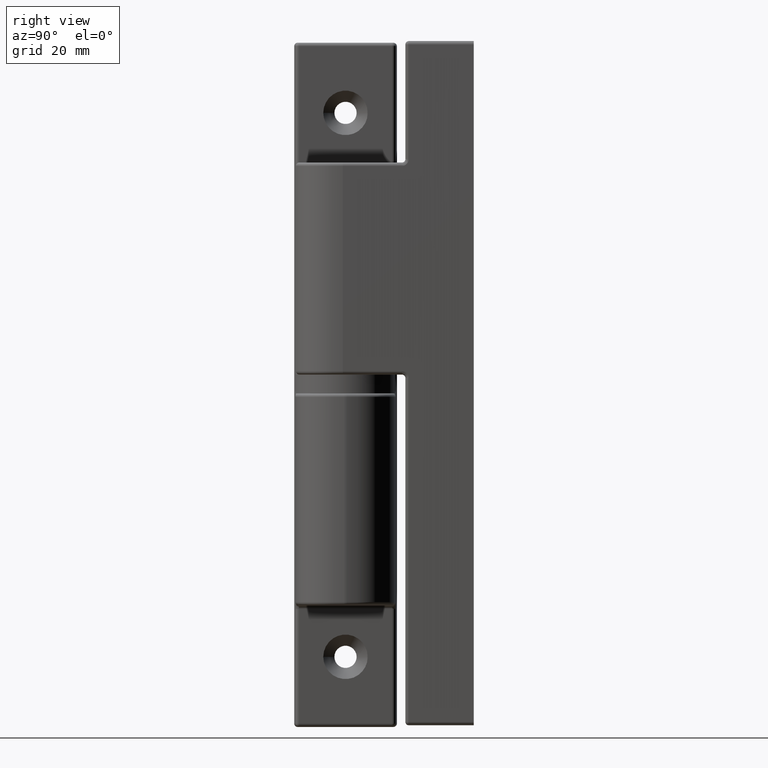
[diagram: clean part render]
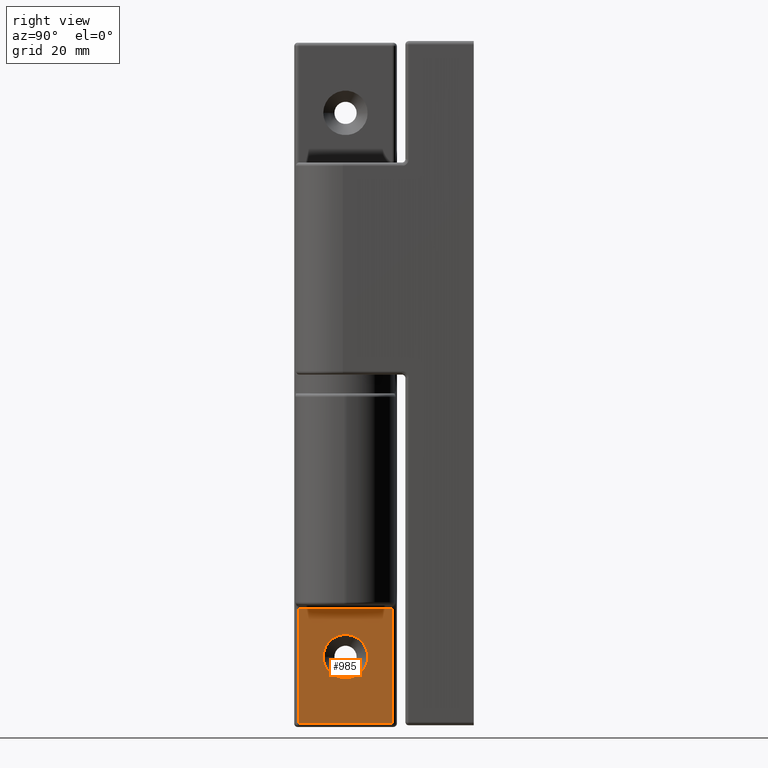
[diagram: same view with one face highlighted and labeled with its STEP entity id]
A machine part, right view. The second image highlights one B-rep face of the part: STEP entity #985.
In plain terms, the highlighted planar face has unit normal (-1, 0, 0).
Its self-contained STEP definition (entity closure, byte-faithful):
#49=FACE_BOUND('',#330,.T.);
#86=PLANE('',#1091);
#116=LINE('',#1669,#160);
#120=LINE('',#1692,#164);
#122=LINE('',#1695,#166);
#126=LINE('',#1704,#170);
#160=VECTOR('',#1254,27.2688609809314);
#164=VECTOR('',#1280,33.5);
#166=VECTOR('',#1284,27.2688609809314);
#170=VECTOR('',#1294,33.5);
#252=FACE_OUTER_BOUND('',#329,.T.);
#329=EDGE_LOOP('',(#800,#801,#802,#803));
#330=EDGE_LOOP('',(#804));
#438=CIRCLE('',#1092,6.5);
#499=VERTEX_POINT('',#1595);
#505=VERTEX_POINT('',#1637);
#515=VERTEX_POINT('',#1672);
#521=VERTEX_POINT('',#1687);
#536=VERTEX_POINT('',#1737);
#607=EDGE_CURVE('',#499,#505,#116,.T.);
#618=EDGE_CURVE('',#505,#521,#120,.T.);
#620=EDGE_CURVE('',#521,#515,#122,.T.);
#625=EDGE_CURVE('',#515,#499,#126,.T.);
#641=EDGE_CURVE('',#536,#536,#438,.T.);
#800=ORIENTED_EDGE('',*,*,#607,.F.);
#801=ORIENTED_EDGE('',*,*,#625,.F.);
#802=ORIENTED_EDGE('',*,*,#620,.F.);
#803=ORIENTED_EDGE('',*,*,#618,.F.);
#804=ORIENTED_EDGE('',*,*,#641,.T.);
#985=ADVANCED_FACE('',(#252,#49),#86,.F.);
#1091=AXIS2_PLACEMENT_3D('',#1736,#1325,#1326);
#1092=AXIS2_PLACEMENT_3D('',#1738,#1327,#1328);
#1254=DIRECTION('',(-1.,-1.83697019872103E-16,0.));
#1280=DIRECTION('',(0.,0.,-1.));
#1284=DIRECTION('',(1.,1.83697019872103E-16,0.));
#1294=DIRECTION('',(0.,0.,1.));
#1325=DIRECTION('center_axis',(1.83697019872103E-16,-1.,0.));
#1326=DIRECTION('ref_axis',(0.,0.,-1.));
#1327=DIRECTION('center_axis',(1.83697019872103E-16,-1.,0.));
#1328=DIRECTION('ref_axis',(1.,1.83697019872103E-16,0.));
#1595=CARTESIAN_POINT('',(13.6344304904657,20.,-65.5));
#1637=CARTESIAN_POINT('',(-13.6344304904657,20.,-65.5));
#1669=CARTESIAN_POINT('',(-7.5,20.,-65.5));
#1672=CARTESIAN_POINT('',(13.6344304904657,20.,-99.));
#1687=CARTESIAN_POINT('',(-13.6344304904657,20.,-99.));
#1692=CARTESIAN_POINT('',(-13.6344304904657,20.,-41.125));
#1695=CARTESIAN_POINT('',(-1.67501110627546E-15,20.,-99.));
#1704=CARTESIAN_POINT('',(13.6344304904657,20.,-41.125));
#1736=CARTESIAN_POINT('Origin',(-5.08499095248163E-15,20.,-82.25));
#1737=CARTESIAN_POINT('',(6.5,20.,-79.5));
#1738=CARTESIAN_POINT('Origin',(-4.44089209850063E-15,20.,-79.5));